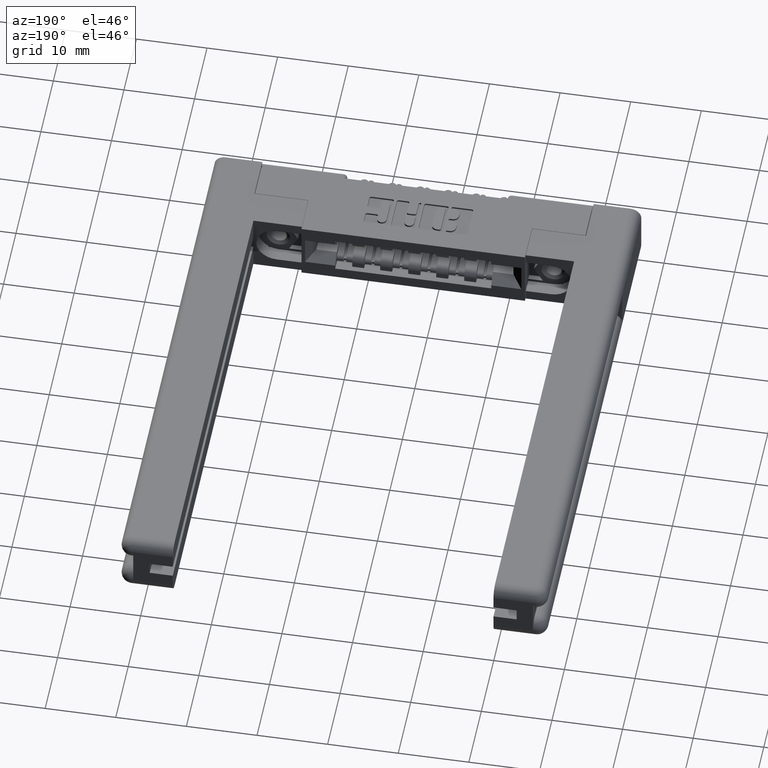
[diagram: clean part render]
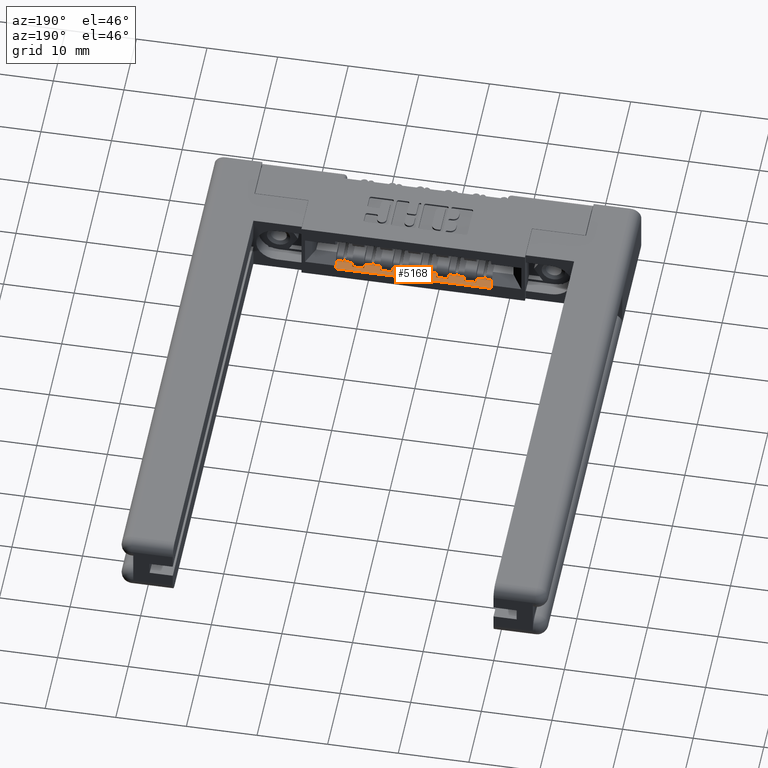
[diagram: same view with one face highlighted and labeled with its STEP entity id]
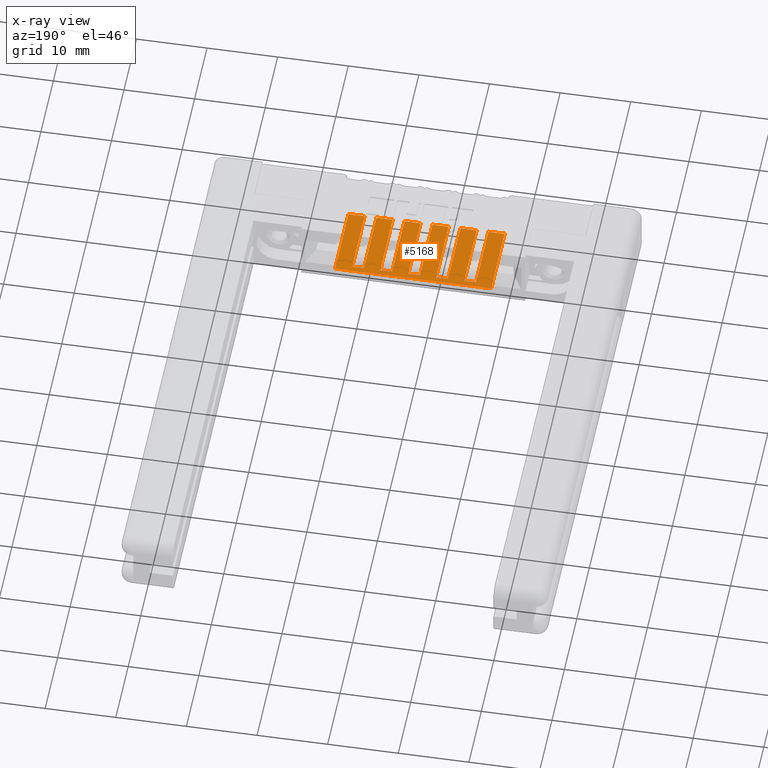
[diagram: x-ray of the same camera — body ghosted, the highlighted face saturated]
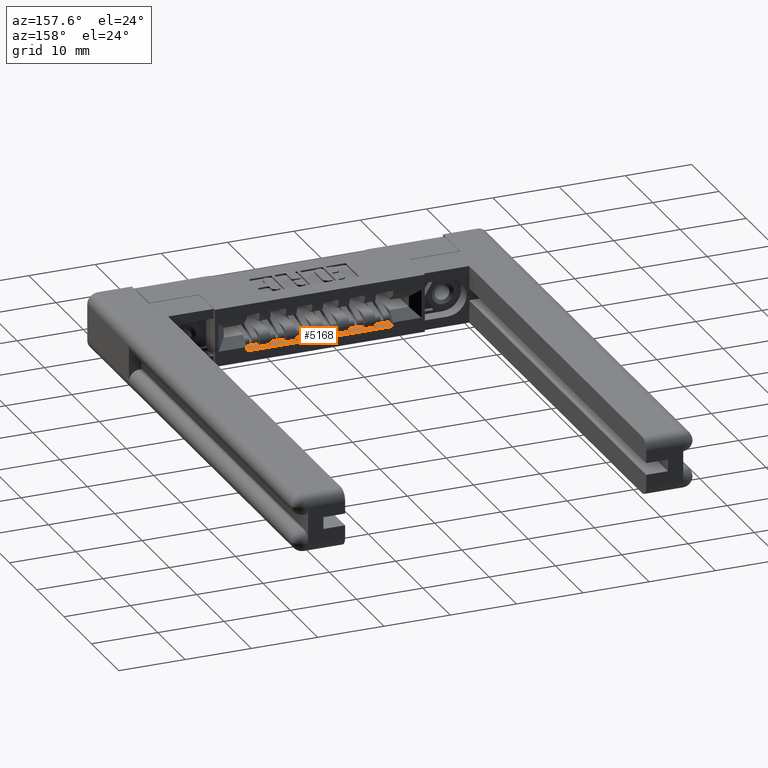
[diagram: same view with one face highlighted and labeled with its STEP entity id]
A machine part, auxiliary view. The second image highlights one B-rep face of the part: STEP entity #5168.
The next image is the same camera in x-ray: the body ghosted, the highlighted face saturated — about 0% of this face is hidden behind the body in this view.
A second angle (auxiliary view) of the same face is appended — the face is thin or edge-on in the first view.
In plain terms, the highlighted planar face has unit normal (0, 0, -1).
Its self-contained STEP definition (entity closure, byte-faithful):
#88 = VERTEX_POINT ( 'NONE', #7988 ) ;
#95 = VERTEX_POINT ( 'NONE', #3304 ) ;
#209 = DIRECTION ( 'NONE',  ( -1.000000000000000000, -0.0000000000000000000, -0.0000000000000000000 ) ) ;
#216 = DIRECTION ( 'NONE',  ( -0.0000000000000000000, 1.000000000000000000, -0.0000000000000000000 ) ) ;
#247 = DIRECTION ( 'NONE',  ( 1.000000000000000000, 0.0000000000000000000, 0.0000000000000000000 ) ) ;
#321 = LINE ( 'NONE', #7985, #3675 ) ;
#349 = CARTESIAN_POINT ( 'NONE',  ( 0.5760000000000004000, 0.05099999999999999700, -0.2790000000000000800 ) ) ;
#411 = CARTESIAN_POINT ( 'NONE',  ( 1.266000000000000000, 0.05099999999999999700, -0.2790000000000000800 ) ) ;
#432 = DIRECTION ( 'NONE',  ( 1.000000000000000000, 0.0000000000000000000, 0.0000000000000000000 ) ) ;
#467 = EDGE_CURVE ( 'NONE', #6184, #12187, #1028, .T. ) ;
#479 = EDGE_CURVE ( 'NONE', #10964, #7968, #10315, .T. ) ;
#559 = LINE ( 'NONE', #5480, #10283 ) ;
#617 = VERTEX_POINT ( 'NONE', #7242 ) ;
#629 = VECTOR ( 'NONE', #11491, 39.37007874015748100 ) ;
#657 = CARTESIAN_POINT ( 'NONE',  ( 1.200000000000000400, 0.1160000000000000100, -0.2790000000000000800 ) ) ;
#747 = EDGE_CURVE ( 'NONE', #789, #7968, #10160, .T. ) ;
#789 = VERTEX_POINT ( 'NONE', #806 ) ;
#806 = CARTESIAN_POINT ( 'NONE',  ( 0.5760000000000004000, 0.05099999999999999700, -0.2790000000000000800 ) ) ;
#1028 = LINE ( 'NONE', #10619, #10466 ) ;
#1141 = ORIENTED_EDGE ( 'NONE', *, *, #6844, .T. ) ;
#1217 = VECTOR ( 'NONE', #3249, 39.37007874015748100 ) ;
#1232 = ORIENTED_EDGE ( 'NONE', *, *, #11430, .F. ) ;
#1264 = DIRECTION ( 'NONE',  ( -0.0000000000000000000, 1.000000000000000000, -0.0000000000000000000 ) ) ;
#1266 = EDGE_CURVE ( 'NONE', #12187, #617, #6731, .T. ) ;
#1268 = EDGE_CURVE ( 'NONE', #8941, #617, #4086, .T. ) ;
#1343 = EDGE_CURVE ( 'NONE', #1907, #10964, #4236, .T. ) ;
#1371 = ORIENTED_EDGE ( 'NONE', *, *, #1343, .F. ) ;
#1408 = ORIENTED_EDGE ( 'NONE', *, *, #747, .T. ) ;
#1450 = VECTOR ( 'NONE', #4847, 39.37007874015748100 ) ;
#1455 = LINE ( 'NONE', #657, #6904 ) ;
#1517 = ORIENTED_EDGE ( 'NONE', *, *, #9143, .T. ) ;
#1568 = ORIENTED_EDGE ( 'NONE', *, *, #8959, .T. ) ;
#1766 = ORIENTED_EDGE ( 'NONE', *, *, #1266, .F. ) ;
#1907 = VERTEX_POINT ( 'NONE', #12088 ) ;
#2010 = VERTEX_POINT ( 'NONE', #3776 ) ;
#2104 = LINE ( 'NONE', #5295, #6511 ) ;
#2127 = LINE ( 'NONE', #2255, #10968 ) ;
#2255 = CARTESIAN_POINT ( 'NONE',  ( 0.5760000000000004000, 0.4729999999999999800, -0.2790000000000000800 ) ) ;
#2335 = LINE ( 'NONE', #8795, #7777 ) ;
#2354 = EDGE_CURVE ( 'NONE', #95, #2010, #559, .T. ) ;
#2494 = ORIENTED_EDGE ( 'NONE', *, *, #7666, .T. ) ;
#2611 = LINE ( 'NONE', #5745, #9856 ) ;
#2631 = DIRECTION ( 'NONE',  ( -0.0000000000000000000, 1.000000000000000000, -0.0000000000000000000 ) ) ;
#2829 = VERTEX_POINT ( 'NONE', #8953 ) ;
#2845 = CARTESIAN_POINT ( 'NONE',  ( 0.5760000000000004000, 0.05099999999999999700, -0.2790000000000000800 ) ) ;
#2900 = EDGE_LOOP ( 'NONE', ( #5814, #7771, #8933, #10814, #1232, #1517, #1408, #5982, #1371, #2494, #8951, #5318, #7906, #10424, #1141, #3373, #6333, #1568, #4222, #1766, #9864, #9811, #11363, #8179 ) ) ;
#2913 = VECTOR ( 'NONE', #2631, 39.37007874015748100 ) ;
#3064 = VECTOR ( 'NONE', #209, 39.37007874015748100 ) ;
#3108 = PLANE ( 'NONE',  #10334 ) ;
#3144 = EDGE_CURVE ( 'NONE', #3800, #10892, #9221, .T. ) ;
#3152 = DIRECTION ( 'NONE',  ( -0.0000000000000000000, 1.000000000000000000, -0.0000000000000000000 ) ) ;
#3239 = EDGE_CURVE ( 'NONE', #6682, #7216, #8103, .T. ) ;
#3249 = DIRECTION ( 'NONE',  ( -1.000000000000000000, -0.0000000000000000000, -0.0000000000000000000 ) ) ;
#3304 = CARTESIAN_POINT ( 'NONE',  ( 1.356000000000000500, 0.05100000000000001800, -0.2790000000000000800 ) ) ;
#3345 = DIRECTION ( 'NONE',  ( -1.000000000000000000, -0.0000000000000000000, -0.0000000000000000000 ) ) ;
#3373 = ORIENTED_EDGE ( 'NONE', *, *, #3144, .F. ) ;
#3383 = EDGE_CURVE ( 'NONE', #11055, #4235, #10646, .T. ) ;
#3592 = DIRECTION ( 'NONE',  ( -1.000000000000000000, -0.0000000000000000000, -0.0000000000000000000 ) ) ;
#3635 = VERTEX_POINT ( 'NONE', #4400 ) ;
#3675 = VECTOR ( 'NONE', #3345, 39.37007874015748100 ) ;
#3750 = CARTESIAN_POINT ( 'NONE',  ( 0.7320000000000003200, 0.1160000000000000100, -0.2790000000000000800 ) ) ;
#3764 = CARTESIAN_POINT ( 'NONE',  ( 1.200000000000000400, 0.05099999999999999700, -0.2790000000000000800 ) ) ;
#3776 = CARTESIAN_POINT ( 'NONE',  ( 1.356000000000000500, 0.4729999999999999800, -0.2790000000000000800 ) ) ;
#3780 = VECTOR ( 'NONE', #10366, 39.37007874015748100 ) ;
#3800 = VERTEX_POINT ( 'NONE', #5836 ) ;
#3873 = EDGE_CURVE ( 'NONE', #12145, #11055, #6185, .T. ) ;
#3927 = CARTESIAN_POINT ( 'NONE',  ( 0.4860000000000003800, 0.4419999999999999500, -0.2790000000000000800 ) ) ;
#4021 = CARTESIAN_POINT ( 'NONE',  ( 0.7320000000000003200, 0.05099999999999999700, -0.2790000000000000800 ) ) ;
#4086 = LINE ( 'NONE', #6473, #3780 ) ;
#4195 = CARTESIAN_POINT ( 'NONE',  ( 1.266000000000000000, 0.1160000000000000100, -0.2790000000000000800 ) ) ;
#4222 = ORIENTED_EDGE ( 'NONE', *, *, #1268, .T. ) ;
#4235 = VERTEX_POINT ( 'NONE', #5673 ) ;
#4236 = LINE ( 'NONE', #5740, #7763 ) ;
#4346 = CARTESIAN_POINT ( 'NONE',  ( 1.044000000000000500, 0.05099999999999999700, -0.2790000000000000800 ) ) ;
#4400 = CARTESIAN_POINT ( 'NONE',  ( 0.7320000000000003200, 0.4419999999999999500, -0.2790000000000000800 ) ) ;
#4465 = EDGE_CURVE ( 'NONE', #88, #3635, #321, .T. ) ;
#4491 = CARTESIAN_POINT ( 'NONE',  ( 0.8880000000000003400, 0.05099999999999999700, -0.2790000000000000800 ) ) ;
#4758 = CARTESIAN_POINT ( 'NONE',  ( 0.6420000000000004600, 0.4419999999999999500, -0.2790000000000000800 ) ) ;
#4847 = DIRECTION ( 'NONE',  ( -1.000000000000000000, -0.0000000000000000000, -0.0000000000000000000 ) ) ;
#4870 = DIRECTION ( 'NONE',  ( -0.0000000000000000000, 1.000000000000000000, -0.0000000000000000000 ) ) ;
#4887 = CARTESIAN_POINT ( 'NONE',  ( 0.5760000000000004000, 0.05099999999999999700, -0.2790000000000000800 ) ) ;
#4988 = CARTESIAN_POINT ( 'NONE',  ( 1.110000000000000300, 0.4419999999999999500, -0.2790000000000000800 ) ) ;
#5168 = ADVANCED_FACE ( 'NONE', ( #8645 ), #3108, .F. ) ;
#5181 = EDGE_CURVE ( 'NONE', #6682, #88, #2335, .T. ) ;
#5295 = CARTESIAN_POINT ( 'NONE',  ( 0.5760000000000004000, 0.05099999999999999700, -0.2790000000000000800 ) ) ;
#5318 = ORIENTED_EDGE ( 'NONE', *, *, #4465, .F. ) ;
#5480 = CARTESIAN_POINT ( 'NONE',  ( 1.356000000000000500, 0.4419999999999999500, -0.2790000000000000800 ) ) ;
#5558 = VECTOR ( 'NONE', #3592, 39.37007874015748100 ) ;
#5605 = VECTOR ( 'NONE', #3152, 39.37007874015748100 ) ;
#5673 = CARTESIAN_POINT ( 'NONE',  ( 1.200000000000000400, 0.4419999999999999500, -0.2790000000000000800 ) ) ;
#5740 = CARTESIAN_POINT ( 'NONE',  ( 0.6420000000000004600, 0.1160000000000000100, -0.2790000000000000800 ) ) ;
#5745 = CARTESIAN_POINT ( 'NONE',  ( 0.4860000000000003800, 0.1160000000000000100, -0.2790000000000000800 ) ) ;
#5753 = CARTESIAN_POINT ( 'NONE',  ( 0.4860000000000003800, 0.4419999999999999500, -0.2790000000000000800 ) ) ;
#5806 = VECTOR ( 'NONE', #432, 39.37007874015748100 ) ;
#5814 = ORIENTED_EDGE ( 'NONE', *, *, #3873, .F. ) ;
#5836 = CARTESIAN_POINT ( 'NONE',  ( 0.9540000000000002900, 0.4419999999999999500, -0.2790000000000000800 ) ) ;
#5956 = LINE ( 'NONE', #3750, #10401 ) ;
#5982 = ORIENTED_EDGE ( 'NONE', *, *, #479, .F. ) ;
#6130 = CARTESIAN_POINT ( 'NONE',  ( 0.4860000000000003800, 0.4419999999999999500, -0.2790000000000000800 ) ) ;
#6184 = VERTEX_POINT ( 'NONE', #11054 ) ;
#6185 = LINE ( 'NONE', #4195, #5605 ) ;
#6333 = ORIENTED_EDGE ( 'NONE', *, *, #6510, .F. ) ;
#6366 = VERTEX_POINT ( 'NONE', #6889 ) ;
#6424 = DIRECTION ( 'NONE',  ( -0.0000000000000000000, 1.000000000000000000, -0.0000000000000000000 ) ) ;
#6473 = CARTESIAN_POINT ( 'NONE',  ( 1.044000000000000500, 0.1160000000000000100, -0.2790000000000000800 ) ) ;
#6510 = EDGE_CURVE ( 'NONE', #6366, #3800, #9344, .T. ) ;
#6511 = VECTOR ( 'NONE', #247, 39.37007874015748100 ) ;
#6646 = CARTESIAN_POINT ( 'NONE',  ( 0.8880000000000003400, 0.1160000000000000100, -0.2790000000000000800 ) ) ;
#6682 = VERTEX_POINT ( 'NONE', #8628 ) ;
#6731 = LINE ( 'NONE', #7417, #5558 ) ;
#6844 = EDGE_CURVE ( 'NONE', #7216, #10892, #11296, .T. ) ;
#6865 = CARTESIAN_POINT ( 'NONE',  ( 0.5760000000000004000, 0.1160000000000000100, -0.2790000000000000800 ) ) ;
#6889 = CARTESIAN_POINT ( 'NONE',  ( 0.9540000000000002900, 0.05099999999999999700, -0.2790000000000000800 ) ) ;
#6904 = VECTOR ( 'NONE', #8074, 39.37007874015748100 ) ;
#7216 = VERTEX_POINT ( 'NONE', #4491 ) ;
#7230 = EDGE_CURVE ( 'NONE', #9526, #3635, #5956, .T. ) ;
#7242 = CARTESIAN_POINT ( 'NONE',  ( 1.044000000000000500, 0.4419999999999999500, -0.2790000000000000800 ) ) ;
#7392 = CARTESIAN_POINT ( 'NONE',  ( 1.266000000000000000, 0.4419999999999999500, -0.2790000000000000800 ) ) ;
#7417 = CARTESIAN_POINT ( 'NONE',  ( 0.4860000000000003800, 0.4419999999999999500, -0.2790000000000000800 ) ) ;
#7478 = EDGE_CURVE ( 'NONE', #12145, #95, #8295, .T. ) ;
#7544 = EDGE_CURVE ( 'NONE', #2010, #9816, #2127, .T. ) ;
#7666 = EDGE_CURVE ( 'NONE', #1907, #9526, #9306, .T. ) ;
#7738 = DIRECTION ( 'NONE',  ( -0.0000000000000000000, 1.000000000000000000, -0.0000000000000000000 ) ) ;
#7763 = VECTOR ( 'NONE', #4870, 39.37007874015748100 ) ;
#7771 = ORIENTED_EDGE ( 'NONE', *, *, #7478, .T. ) ;
#7777 = VECTOR ( 'NONE', #7738, 39.37007874015748100 ) ;
#7801 = CARTESIAN_POINT ( 'NONE',  ( 0.8880000000000003400, 0.4419999999999999500, -0.2790000000000000800 ) ) ;
#7906 = ORIENTED_EDGE ( 'NONE', *, *, #5181, .F. ) ;
#7968 = VERTEX_POINT ( 'NONE', #9215 ) ;
#7970 = VERTEX_POINT ( 'NONE', #3764 ) ;
#7985 = CARTESIAN_POINT ( 'NONE',  ( 0.4860000000000003800, 0.4419999999999999500, -0.2790000000000000800 ) ) ;
#7988 = CARTESIAN_POINT ( 'NONE',  ( 0.7980000000000003800, 0.4419999999999999500, -0.2790000000000000800 ) ) ;
#8061 = CARTESIAN_POINT ( 'NONE',  ( 0.5760000000000004000, 0.1160000000000000100, -0.2790000000000000800 ) ) ;
#8074 = DIRECTION ( 'NONE',  ( -0.0000000000000000000, 1.000000000000000000, -0.0000000000000000000 ) ) ;
#8097 = EDGE_CURVE ( 'NONE', #6184, #7970, #8558, .T. ) ;
#8103 = LINE ( 'NONE', #4887, #629 ) ;
#8179 = ORIENTED_EDGE ( 'NONE', *, *, #3383, .F. ) ;
#8295 = LINE ( 'NONE', #349, #5806 ) ;
#8558 = LINE ( 'NONE', #2845, #10955 ) ;
#8628 = CARTESIAN_POINT ( 'NONE',  ( 0.7980000000000003800, 0.05099999999999999700, -0.2790000000000000800 ) ) ;
#8645 = FACE_OUTER_BOUND ( 'NONE', #2900, .T. ) ;
#8795 = CARTESIAN_POINT ( 'NONE',  ( 0.7980000000000003800, 0.1160000000000000100, -0.2790000000000000800 ) ) ;
#8933 = ORIENTED_EDGE ( 'NONE', *, *, #2354, .T. ) ;
#8941 = VERTEX_POINT ( 'NONE', #4346 ) ;
#8951 = ORIENTED_EDGE ( 'NONE', *, *, #7230, .T. ) ;
#8953 = CARTESIAN_POINT ( 'NONE',  ( 0.4860000000000003800, 0.05099999999999999700, -0.2790000000000000800 ) ) ;
#8959 = EDGE_CURVE ( 'NONE', #6366, #8941, #2104, .T. ) ;
#9070 = CARTESIAN_POINT ( 'NONE',  ( 0.5760000000000004000, 0.05099999999999999700, -0.2790000000000000800 ) ) ;
#9143 = EDGE_CURVE ( 'NONE', #2829, #789, #11091, .T. ) ;
#9179 = VECTOR ( 'NONE', #11365, 39.37007874015748100 ) ;
#9215 = CARTESIAN_POINT ( 'NONE',  ( 0.5760000000000004000, 0.4419999999999999500, -0.2790000000000000800 ) ) ;
#9221 = LINE ( 'NONE', #5753, #1450 ) ;
#9306 = LINE ( 'NONE', #9757, #11263 ) ;
#9344 = LINE ( 'NONE', #12102, #9972 ) ;
#9421 = DIRECTION ( 'NONE',  ( -0.0000000000000000000, 1.000000000000000000, -0.0000000000000000000 ) ) ;
#9526 = VERTEX_POINT ( 'NONE', #4021 ) ;
#9582 = DIRECTION ( 'NONE',  ( -0.0000000000000000000, 0.0000000000000000000, -1.000000000000000000 ) ) ;
#9670 = DIRECTION ( 'NONE',  ( -1.000000000000000000, 0.0000000000000000000, 0.0000000000000000000 ) ) ;
#9757 = CARTESIAN_POINT ( 'NONE',  ( 0.5760000000000004000, 0.05099999999999999700, -0.2790000000000000800 ) ) ;
#9798 = DIRECTION ( 'NONE',  ( -1.000000000000000000, 0.0000000000000000000, 0.0000000000000000000 ) ) ;
#9811 = ORIENTED_EDGE ( 'NONE', *, *, #8097, .T. ) ;
#9816 = VERTEX_POINT ( 'NONE', #10321 ) ;
#9856 = VECTOR ( 'NONE', #216, 39.37007874015748100 ) ;
#9864 = ORIENTED_EDGE ( 'NONE', *, *, #467, .F. ) ;
#9972 = VECTOR ( 'NONE', #6424, 39.37007874015748100 ) ;
#10160 = LINE ( 'NONE', #8061, #2913 ) ;
#10283 = VECTOR ( 'NONE', #9421, 39.37007874015748100 ) ;
#10315 = LINE ( 'NONE', #3927, #3064 ) ;
#10321 = CARTESIAN_POINT ( 'NONE',  ( 0.4860000000000003800, 0.4729999999999999800, -0.2790000000000000800 ) ) ;
#10334 = AXIS2_PLACEMENT_3D ( 'NONE', #6865, #9582, #9670 ) ;
#10366 = DIRECTION ( 'NONE',  ( -0.0000000000000000000, 1.000000000000000000, -0.0000000000000000000 ) ) ;
#10401 = VECTOR ( 'NONE', #11349, 39.37007874015748100 ) ;
#10418 = DIRECTION ( 'NONE',  ( 1.000000000000000000, 0.0000000000000000000, 0.0000000000000000000 ) ) ;
#10424 = ORIENTED_EDGE ( 'NONE', *, *, #3239, .T. ) ;
#10466 = VECTOR ( 'NONE', #1264, 39.37007874015748100 ) ;
#10619 = CARTESIAN_POINT ( 'NONE',  ( 1.110000000000000300, 0.1160000000000000100, -0.2790000000000000800 ) ) ;
#10646 = LINE ( 'NONE', #6130, #1217 ) ;
#10814 = ORIENTED_EDGE ( 'NONE', *, *, #7544, .T. ) ;
#10892 = VERTEX_POINT ( 'NONE', #7801 ) ;
#10955 = VECTOR ( 'NONE', #10418, 39.37007874015748100 ) ;
#10964 = VERTEX_POINT ( 'NONE', #4758 ) ;
#10968 = VECTOR ( 'NONE', #9798, 39.37007874015748100 ) ;
#11054 = CARTESIAN_POINT ( 'NONE',  ( 1.110000000000000300, 0.05099999999999999700, -0.2790000000000000800 ) ) ;
#11055 = VERTEX_POINT ( 'NONE', #7392 ) ;
#11091 = LINE ( 'NONE', #9070, #11670 ) ;
#11108 = EDGE_CURVE ( 'NONE', #7970, #4235, #1455, .T. ) ;
#11263 = VECTOR ( 'NONE', #11613, 39.37007874015748100 ) ;
#11296 = LINE ( 'NONE', #6646, #9179 ) ;
#11349 = DIRECTION ( 'NONE',  ( -0.0000000000000000000, 1.000000000000000000, -0.0000000000000000000 ) ) ;
#11363 = ORIENTED_EDGE ( 'NONE', *, *, #11108, .T. ) ;
#11365 = DIRECTION ( 'NONE',  ( -0.0000000000000000000, 1.000000000000000000, -0.0000000000000000000 ) ) ;
#11430 = EDGE_CURVE ( 'NONE', #2829, #9816, #2611, .T. ) ;
#11491 = DIRECTION ( 'NONE',  ( 1.000000000000000000, 0.0000000000000000000, 0.0000000000000000000 ) ) ;
#11613 = DIRECTION ( 'NONE',  ( 1.000000000000000000, 0.0000000000000000000, 0.0000000000000000000 ) ) ;
#11670 = VECTOR ( 'NONE', #11957, 39.37007874015748100 ) ;
#11957 = DIRECTION ( 'NONE',  ( 1.000000000000000000, 0.0000000000000000000, 0.0000000000000000000 ) ) ;
#12088 = CARTESIAN_POINT ( 'NONE',  ( 0.6420000000000004600, 0.05099999999999999700, -0.2790000000000000800 ) ) ;
#12102 = CARTESIAN_POINT ( 'NONE',  ( 0.9540000000000002900, 0.1160000000000000100, -0.2790000000000000800 ) ) ;
#12145 = VERTEX_POINT ( 'NONE', #411 ) ;
#12187 = VERTEX_POINT ( 'NONE', #4988 ) ;